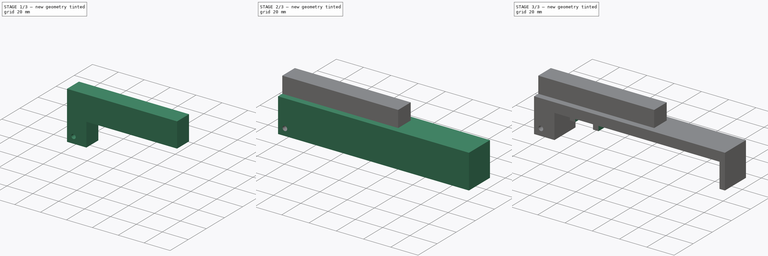
[diagram: build sequence overview — one tinted view per stage of 3, left to right]
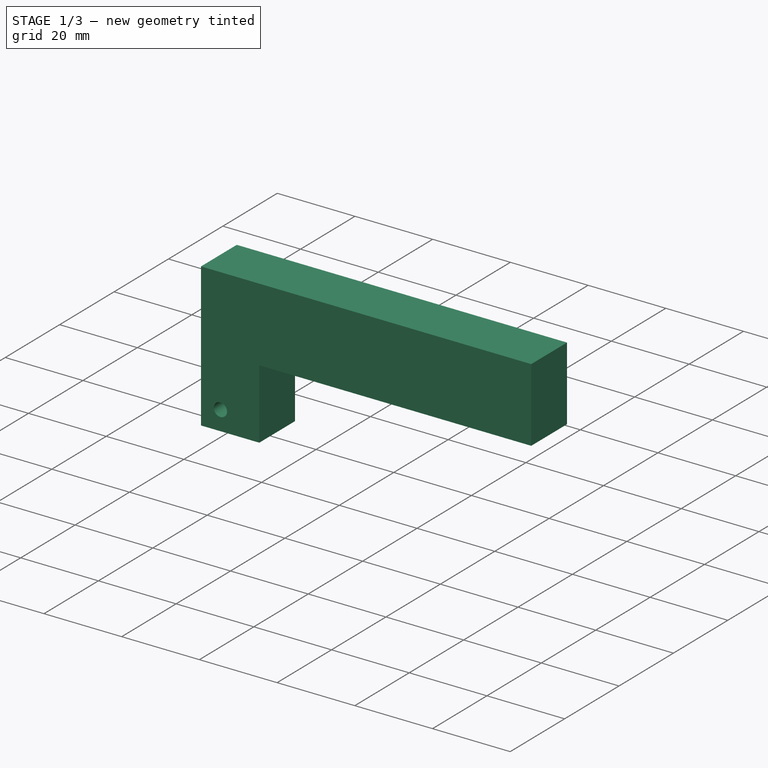
[diagram: stage 1 of 3 — iso view after this stage's code; geometry added in this stage tinted green]
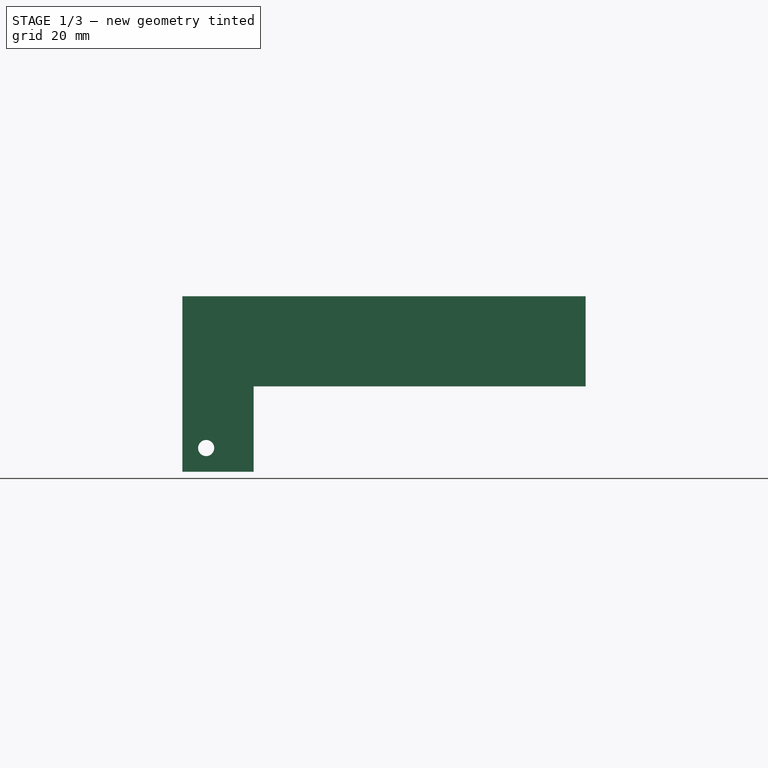
[diagram: stage 1 of 3 — front view after this stage's code; geometry added in this stage tinted green]
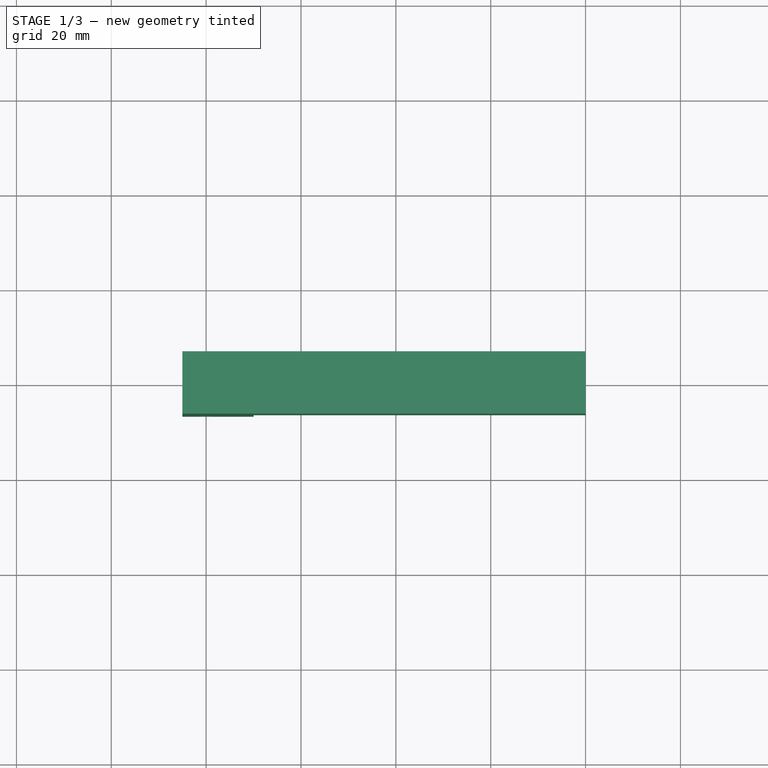
[diagram: stage 1 of 3 — top view after this stage's code; geometry added in this stage tinted green]
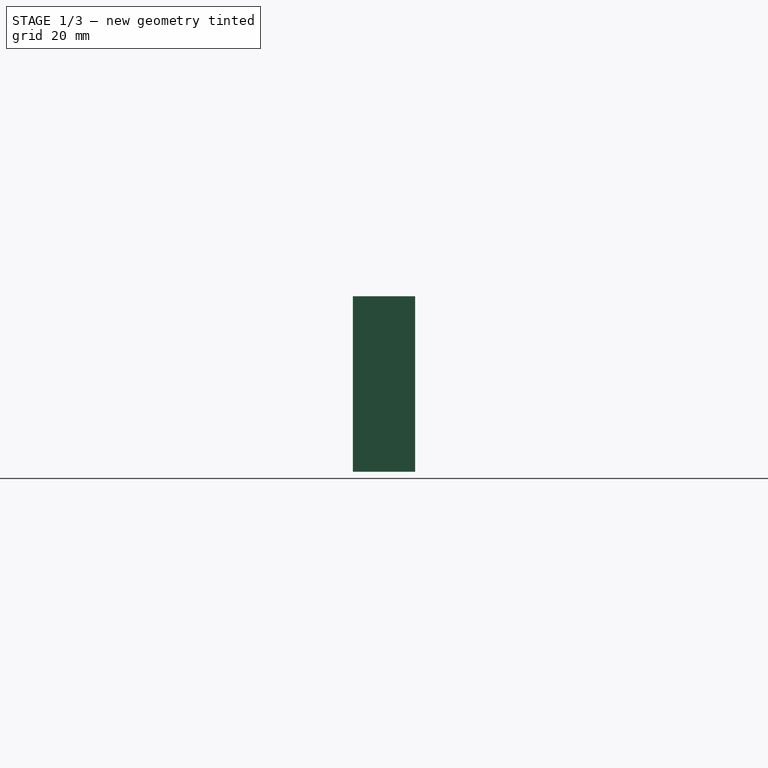
[diagram: stage 1 of 3 — right view after this stage's code; geometry added in this stage tinted green]
FCSTD DOCUMENT  (FreeCAD 1.0R39109 (Git))
Label: ProtoKeyboardPiano
License: All rights reserved
LicenseURL: https://en.wikipedia.org/wiki/All_rights_reserved
objects: Sketcher::SketchObject×7, PartDesign::Pad×3, PartDesign::Body×3, PartDesign::Pocket×2, App::Link×2, App::Part×2, Part::Feature×1
note: 33 computed .brp shape members not serialized (recipe doc carries the construction recipe); baked Part::Feature solids carry a one-line shape summary decoded from their .brp

FEATURE [PartDesign::Body] Body  label="Corps"
  AllowCompound = false
  Group = -> [Sketch,Pad,Sketch001,Pocket,Sketch002,Pad001]
  Origin = -> Origin
  Tip = -> Pad001
FEATURE [Sketcher::SketchObject] Sketch003
  ArcFitTolerance = 1e-06
  AttachmentSupport = -> [XY_Plane001]
  FullyConstrained = false
  MakeInternals = false
  MapMode = 5
  sketch-geometry (44):
    g0: LineSegment StartX=0 StartY=0 StartZ=0 EndX=140 EndY=0 EndZ=0
    g1: LineSegment StartX=140 StartY=0 StartZ=0 EndX=140 EndY=157.714 EndZ=0
    g2: LineSegment StartX=140 StartY=157.714 StartZ=0 EndX=0 EndY=157.714 EndZ=0
    g3: LineSegment StartX=0 StartY=157.714 StartZ=0 EndX=0 EndY=0 EndZ=0
    g4: LineSegment StartX=0 StartY=26.2857 StartZ=0 EndX=0 EndY=13.1429 EndZ=0
    g5: LineSegment StartX=0 StartY=13.1429 StartZ=0 EndX=85 EndY=13.1429 EndZ=0
    g6: LineSegment StartX=85 StartY=13.1429 StartZ=0 EndX=85 EndY=26.2857 EndZ=0
    g7: LineSegment StartX=85 StartY=26.2857 StartZ=0 EndX=0 EndY=26.2857 EndZ=0
    g8: LineSegment StartX=0 StartY=52.5714 StartZ=0 EndX=0 EndY=39.4286 EndZ=0
    g9: LineSegment StartX=0 StartY=39.4286 StartZ=0 EndX=85 EndY=39.4286 EndZ=0
    g10: LineSegment StartX=85 StartY=39.4286 StartZ=0 EndX=85 EndY=52.5714 EndZ=0
    g11: LineSegment StartX=85 StartY=52.5714 StartZ=0 EndX=0 EndY=52.5714 EndZ=0
    g12: LineSegment StartX=0 StartY=78.8571 StartZ=0 EndX=85 EndY=78.8571 EndZ=0
    g13: LineSegment StartX=85 StartY=78.8571 StartZ=0 EndX=85 EndY=92 EndZ=0
    g14: LineSegment StartX=85 StartY=92 StartZ=0 EndX=0 EndY=92 EndZ=0
    g15: LineSegment StartX=0 StartY=92 StartZ=0 EndX=0 EndY=78.8571 EndZ=0
    g16: LineSegment StartX=0 StartY=105.143 StartZ=0 EndX=85 EndY=105.143 EndZ=0
    g17: LineSegment StartX=85 StartY=105.143 StartZ=0 EndX=85 EndY=118.286 EndZ=0
    g18: LineSegment StartX=85 StartY=118.286 StartZ=0 EndX=0 EndY=118.286 EndZ=0
    g19: LineSegment StartX=0 StartY=118.286 StartZ=0 EndX=0 EndY=105.143 EndZ=0
    g20: LineSegment StartX=0 StartY=131.429 StartZ=0 EndX=85 EndY=131.429 EndZ=0
    g21: LineSegment StartX=85 StartY=131.429 StartZ=0 EndX=85 EndY=144.571 EndZ=0
    g22: LineSegment StartX=85 StartY=144.571 StartZ=0 EndX=0 EndY=144.571 EndZ=0
    g23: LineSegment StartX=0 StartY=144.571 StartZ=0 EndX=0 EndY=131.429 EndZ=0
    g24: LineSegment [constr] StartX=85 StartY=26.2857 StartZ=0 EndX=85 EndY=39.4286 EndZ=0
    g25: LineSegment [constr] StartX=85 StartY=92 StartZ=0 EndX=85 EndY=105.143 EndZ=0
    g26: LineSegment [constr] StartX=85 StartY=118.286 StartZ=0 EndX=85 EndY=131.429 EndZ=0
    g27: LineSegment [constr] StartX=85 StartY=144.571 StartZ=0 EndX=85 EndY=157.714 EndZ=0
    g28: LineSegment [constr] StartX=85 StartY=13.1429 StartZ=0 EndX=85 EndY=0 EndZ=0
    g29: LineSegment StartX=0 StartY=65.7143 StartZ=0 EndX=140 EndY=65.7143 EndZ=0
    g30: LineSegment [constr] StartX=85 StartY=52.5714 StartZ=0 EndX=85 EndY=65.7143 EndZ=0
    g31: LineSegment [constr] StartX=85 StartY=65.7143 StartZ=0 EndX=85 EndY=78.8571 EndZ=0
    g32: LineSegment StartX=85 StartY=21.9048 StartZ=0 EndX=140 EndY=21.9048 EndZ=0
    g33: LineSegment StartX=85 StartY=43.8095 StartZ=0 EndX=140 EndY=43.8095 EndZ=0
    g34: LineSegment StartX=85 StartY=88.7143 StartZ=0 EndX=140 EndY=88.7143 EndZ=0
    g35: LineSegment StartX=85 StartY=111.714 StartZ=0 EndX=140 EndY=111.714 EndZ=0
    g36: LineSegment StartX=85 StartY=134.714 StartZ=0 EndX=140 EndY=134.714 EndZ=0
    g37: LineSegment [constr] StartX=119.766 StartY=0 StartZ=0 EndX=119.766 EndY=21.9048 EndZ=0
    g38: LineSegment [constr] StartX=119.766 StartY=21.9048 StartZ=0 EndX=119.766 EndY=43.8095 EndZ=0
    g39: LineSegment [constr] StartX=119.766 StartY=43.8095 StartZ=0 EndX=119.766 EndY=65.7143 EndZ=0
    g40: LineSegment [constr] StartX=119.766 StartY=65.7143 StartZ=0 EndX=119.766 EndY=88.7143 EndZ=0
    g41: LineSegment [constr] StartX=119.766 StartY=88.7143 StartZ=0 EndX=119.766 EndY=111.714 EndZ=0
    g42: LineSegment [constr] StartX=119.766 StartY=111.714 StartZ=0 EndX=119.766 EndY=134.714 EndZ=0
    g43: LineSegment [constr] StartX=119.766 StartY=134.714 StartZ=0 EndX=119.766 EndY=157.714 EndZ=0
  constraints (136):
    c: Coincident(g-1,g0)
    c: Horizontal(g0)
    c: Coincident(g0,g1)
    c: Vertical(g1)
    c: Coincident(g1,g2)
    c: PointOnObject(g2,g-2)
    c: Horizontal(g2)
    c: Coincident(g2,g3)
    c: Coincident(g3,g0)
    c: Coincident(g4,g5)
    c: Coincident(g5,g6)
    c: Coincident(g6,g7)
    c: Coincident(g7,g4)
    c: Vertical(g4)
    c: Vertical(g6)
    c: Horizontal(g5)
    c: Horizontal(g7)
    c: PointOnObject(g4,g3)
    c: Coincident(g8,g9)
    c: Coincident(g9,g10)
    c: Coincident(g10,g11)
    c: Coincident(g11,g8)
    c: Vertical(g8)
    c: Vertical(g10)
    c: Horizontal(g9)
    c: Horizontal(g11)
    c: PointOnObject(g8,g3)
    c: Coincident(g12,g13)
    c: Coincident(g13,g14)
    c: Coincident(g14,g15)
    c: Coincident(g15,g12)
    c: Horizontal(g12)
    c: Horizontal(g14)
    c: Vertical(g13)
    c: Vertical(g15)
    c: PointOnObject(g12,g3)
    c: Coincident(g16,g17)
    c: Coincident(g17,g18)
    c: Coincident(g18,g19)
    c: Coincident(g19,g16)
    c: Horizontal(g16)
    c: Horizontal(g18)
    c: Vertical(g17)
    c: Vertical(g19)
    c: PointOnObject(g16,g3)
    c: Coincident(g20,g21)
    c: Coincident(g21,g22)
    c: Coincident(g22,g23)
    c: Coincident(g23,g20)
    c: Horizontal(g20)
    c: Horizontal(g22)
    c: Vertical(g21)
    c: Vertical(g23)
    c: PointOnObject(g20,g3)
    c: Equal(g6,g10)
    c: Equal(g10,g13)
    c: Equal(g13,g17)
    c: Equal(g17,g21)
    c: Coincident(g24,g6)
    c: Coincident(g24,g9)
    c: Coincident(g25,g13)
    c: Coincident(g25,g16)
    c: Vertical(g25)
    c: Coincident(g26,g17)
    c: Coincident(g26,g20)
    c: Coincident(g27,g21)
    c: PointOnObject(g27,g2)
    c: Vertical(g27)
    c: Coincident(g28,g5)
    c: PointOnObject(g28,g0)
    c: Vertical(g28)
    c: Equal(g5,g9)
    c: Equal(g9,g12)
    c: Equal(g16,g20)
    c: Equal(g28,g24)
    c: Equal(g24,g25)
    c: Equal(g25,g26)
    c: Equal(g26,g27)
    c: Distance(g28,g28) = 13.1429
    c: PointOnObject(g29,g3)
    c: PointOnObject(g29,g1)
    c: Horizontal(g29)
    c: Coincident(g30,g10)
    c: PointOnObject(g30,g29)
    c: Vertical(g30)
    c: Coincident(g31,g30)
    c: Coincident(g31,g12)
    c: Equal(g25,g31)
    c: Equal(g31,g30)
    c: DistanceX(g2,g2) = 140
    c: DistanceX(g21,g1) = 55
    c: Equal(g28,g6)
    c: PointOnObject(g32,g6)
    c: PointOnObject(g32,g1)
    c: Horizontal(g32)
    c: PointOnObject(g33,g1)
    c: Horizontal(g33)
    c: PointOnObject(g34,g13)
    c: PointOnObject(g34,g1)
    c: Horizontal(g34)
    c: PointOnObject(g35,g17)
    c: PointOnObject(g35,g1)
    c: Horizontal(g35)
    c: PointOnObject(g36,g21)
    c: PointOnObject(g36,g1)
    c: Horizontal(g36)
    c: PointOnObject(g37,g0)
    c: PointOnObject(g37,g32)
    c: Vertical(g37)
    c: Coincident(g38,g37)
    c: PointOnObject(g38,g33)
    c: Vertical(g38)
    c: Coincident(g39,g38)
    c: PointOnObject(g39,g29)
    c: Vertical(g39)
    c: Coincident(g40,g39)
    c: PointOnObject(g40,g34)
    c: Vertical(g40)
    c: Coincident(g41,g40)
    c: PointOnObject(g41,g35)
    c: Vertical(g41)
    c: Coincident(g42,g41)
    c: PointOnObject(g42,g36)
    c: Vertical(g42)
    c: Coincident(g43,g42)
    c: PointOnObject(g43,g2)
    c: Vertical(g43)
    c: Equal(g42,g43)
    c: Equal(g42,g41)
    c: Equal(g40,g41)
    c: Equal(g38,g39)
    c: PointOnObject(g33,g10)
    c: Equal(g39,g37)
    c: DistanceY(g43,g43) = 23
    c: DistanceY(g0,g1) = 157.714
    c: Distance(g6,g6) = 13.1429  'LNoire'
FEATURE [PartDesign::Body] Body001  label="Corps001"
  AllowCompound = false
  Group = -> [Sketch003]
  Origin = -> Origin001
FEATURE [App::Part] Part
  Group = -> [Body,Part__Feature,Link]
  Origin = -> Origin002
  Placement = pos=(5,11,0) rot=(0,0,1;0rad)
FEATURE [App::Link] Link001  label="Part001"
  LinkPlacement = pos=(5,33,0) rot=(0,0,1;0rad)
  LinkedObject = -> Part
  Placement = pos=(5,33,0) rot=(0,0,1;0rad)
FEATURE [Sketcher::SketchObject] Sketch004
  ArcFitTolerance = 1e-06
  AttachmentSupport = -> [XZ_Plane003]
  FullyConstrained = true
  MakeInternals = false
  MapMode = 5
  Placement = pos=(0,0,0) rot=(1,0,0;1.5708rad)
  sketch-geometry (5):
    g0: Circle CenterX=0 CenterY=0 CenterZ=0 NormalX=0 NormalY=0 NormalZ=1 AngleXU=0 Radius=1.7
    g1: LineSegment StartX=-5 StartY=-5 StartZ=0 EndX=80 EndY=-5 EndZ=0
    g2: LineSegment StartX=80 StartY=-5 StartZ=0 EndX=80 EndY=32 EndZ=0
    g3: LineSegment StartX=80 StartY=32 StartZ=0 EndX=-5 EndY=32 EndZ=0
    g4: LineSegment StartX=-5 StartY=32 StartZ=0 EndX=-5 EndY=-5 EndZ=0
  constraints (14):
    c: Coincident(g0,g-1)
    c: Diameter(g0) = 3.4
    c: Coincident(g1,g2)
    c: Coincident(g2,g3)
    c: Coincident(g3,g4)
    c: Coincident(g4,g1)
    c: Horizontal(g1)
    c: Horizontal(g3)
    c: Vertical(g2)
    c: Vertical(g4)
    c: DistanceX(g1,g0) = 5
    c: DistanceY(g1,g0) = 5
    c: DistanceX(g3,g3) = 85
    c: DistanceY(g2,g2) = 37
FEATURE [PartDesign::Pad] Pad002
  Direction = (0,-1,2e-16)
  Length = 13.1429
  Length2 = 10
  Midplane = true
  Placement = pos=(0,0,0) rot=(1,0,0;1.5708rad)
  Profile = -> Sketch004
  ReferenceAxis = -> Sketch004 [N_Axis]
  Refine = true
  Suppressed = false
  Type = 0
  expr: Length = Sketch003.Constraints.LNoire
FEATURE [Sketcher::SketchObject] Sketch005
  ArcFitTolerance = 1e-06
  AttachmentSupport = -> [XZ_Plane003]
  ExternalGeometry = -> [Pad002]
  FullyConstrained = true
  MakeInternals = false
  MapMode = 5
  Placement = pos=(0,0,0) rot=(1,0,0;1.5708rad)
  sketch-geometry (4):
    g0: LineSegment StartX=10 StartY=-5 StartZ=0 EndX=80 EndY=-5 EndZ=0
    g1: LineSegment StartX=80 StartY=-5 StartZ=0 EndX=80 EndY=13 EndZ=0
    g2: LineSegment StartX=80 StartY=13 StartZ=0 EndX=10 EndY=13 EndZ=0
    g3: LineSegment StartX=10 StartY=13 StartZ=0 EndX=10 EndY=-5 EndZ=0
  constraints (11):
    c: Coincident(g0,g1)
    c: Coincident(g1,g2)
    c: Coincident(g2,g3)
    c: Coincident(g3,g0)
    c: Horizontal(g0)
    c: Horizontal(g2)
    c: Vertical(g1)
    c: Vertical(g3)
    c: Coincident(g-3,g0)
    c: DistanceX(g-1,g0) = 10
    c: DistanceY(g1,g1) = 18
FEATURE [PartDesign::Pocket] Pocket001
  BaseFeature = -> Pad002
  Direction = (0,1,-2e-16)
  Length = 5
  Length2 = 5
  Midplane = true
  Placement = pos=(0,0,0) rot=(1,0,0;1.5708rad)
  Profile = -> Sketch005
  ReferenceAxis = -> Sketch005 [N_Axis]
  Refine = true
  Suppressed = false
  Type = 1
FEATURE [Sketcher::SketchObject] Sketch006
  ArcFitTolerance = 1e-06
  AttachmentSupport = -> [XZ_Plane003]
  ExternalGeometry = -> [Pocket001]
  FullyConstrained = false
  MakeInternals = false
  MapMode = 5
  Placement = pos=(0,0,0) rot=(1,0,0;1.5708rad)
  sketch-geometry (7):
    g0: LineSegment [constr] StartX=0 StartY=0 StartZ=0 EndX=0.450484 EndY=9.78913 EndZ=0
    g1: LineSegment [constr] StartX=0.450484 StartY=9.78913 StartZ=0 EndX=79.8314 EndY=6.13611 EndZ=0
    g2: LineSegment [constr] StartX=0 StartY=0 StartZ=0 EndX=0 EndY=9.79949 EndZ=0
    g3: LineSegment [constr] StartX=0 StartY=9.79949 StartZ=0 EndX=80 EndY=9.79949 EndZ=0
    g4: LineSegment [constr] StartX=80 StartY=9.79949 StartZ=0 EndX=79.8314 EndY=6.13611 EndZ=0
    g5: LineSegment [constr] StartX=43.6859 StartY=9.79949 StartZ=0 EndX=43.6859 EndY=7.79949 EndZ=0
    g6: LineSegment [constr] StartX=76.2813 StartY=9.79949 StartZ=0 EndX=76.2813 EndY=6.29949 EndZ=0
  constraints (21):
    c: Coincident(g0,g-1)
    c: Coincident(g1,g0)
    c: Perpendicular(g0,g1)
    c: Coincident(g2,g0)
    c: PointOnObject(g2,g-2)
    c: Coincident(g3,g2)
    c: Horizontal(g3)
    c: Coincident(g4,g3)
    c: Coincident(g4,g1)
    c: Perpendicular(g4,g1)
    c: Distance(g4,g4) = 3.66725
    c: Equal(g2,g0)
    c: PointOnObject(g3,g-3)
    c: PointOnObject(g5,g3)
    c: PointOnObject(g5,g1)
    c: Vertical(g5)
    c: PointOnObject(g6,g3)
    c: PointOnObject(g6,g1)
    c: Vertical(g6)
    c: DistanceY(g6,g6) = 3.5
    c: DistanceY(g5,g5) = 2
FEATURE [PartDesign::Body] Body002  label="Corps002"
  AllowCompound = false
  Group = -> [Sketch004,Pad002,Sketch005,Pocket001,Sketch006]
  Origin = -> Origin003
  Placement = pos=(5,19.5,0) rot=(0,0,1;0rad)
  Tip = -> Pocket001
FEATURE [App::Part] Part001  label="Part002"
  Group = -> [Body002]
  Origin = -> Origin004
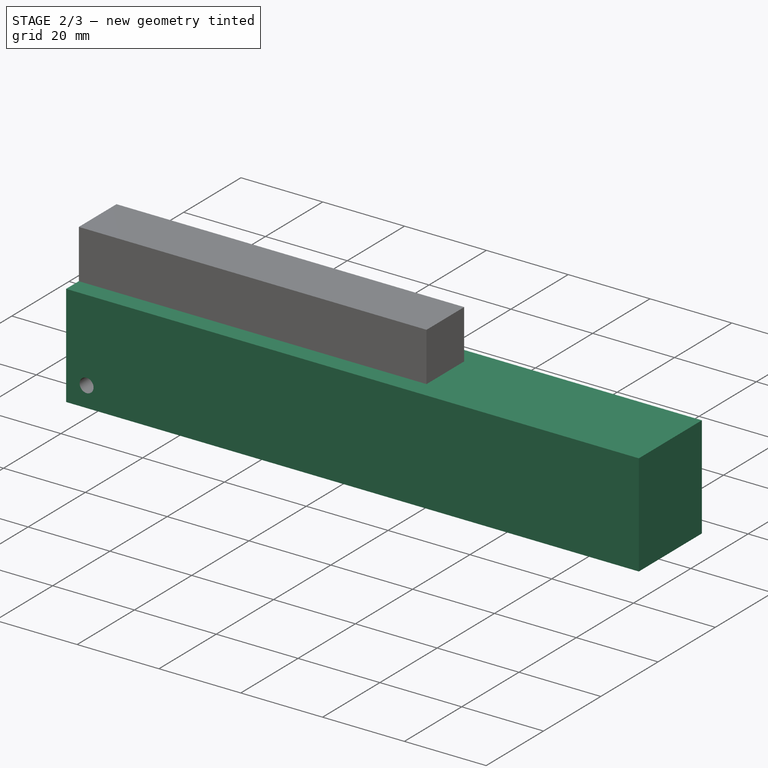
[diagram: stage 2 of 3 — iso view after this stage's code; geometry added in this stage tinted green]
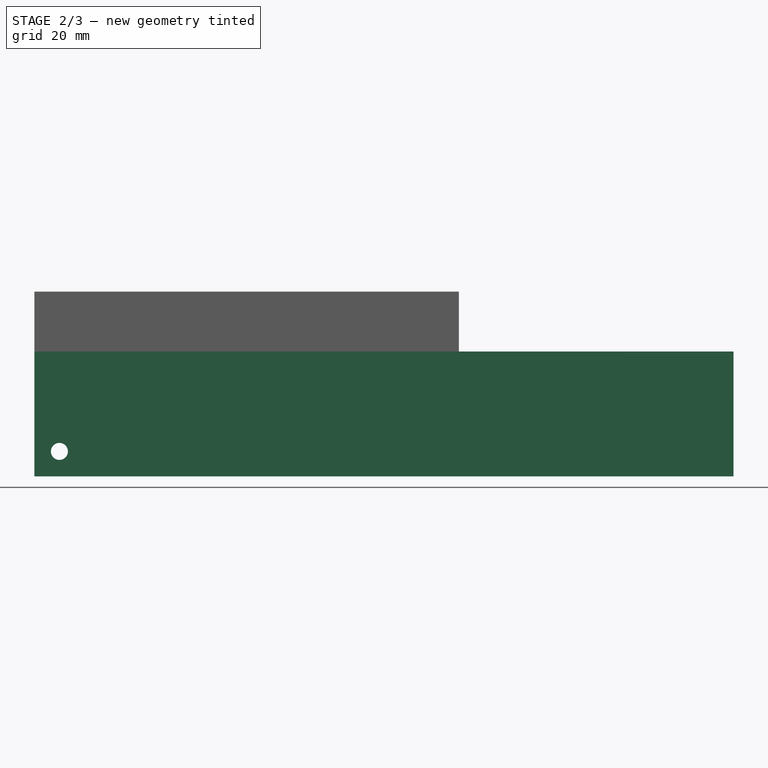
[diagram: stage 2 of 3 — front view after this stage's code; geometry added in this stage tinted green]
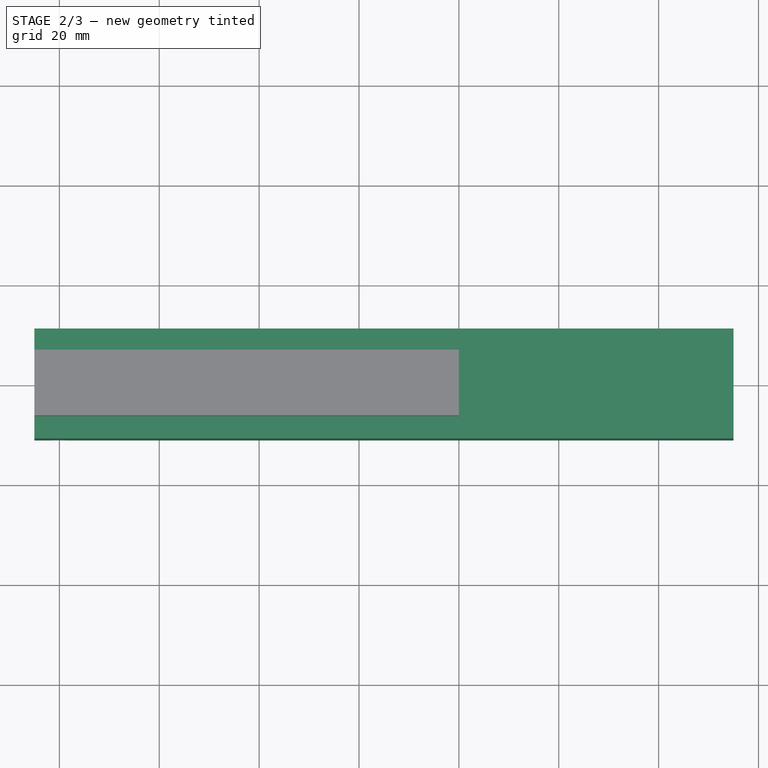
[diagram: stage 2 of 3 — top view after this stage's code; geometry added in this stage tinted green]
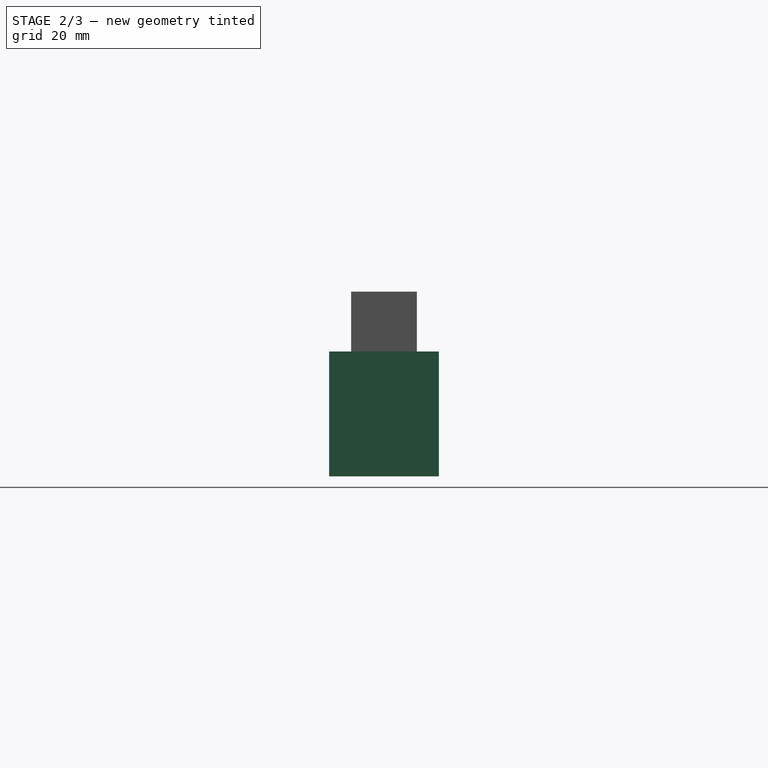
[diagram: stage 2 of 3 — right view after this stage's code; geometry added in this stage tinted green]
FEATURE [Sketcher::SketchObject] Sketch
  ArcFitTolerance = 1e-06
  AttachmentSupport = -> [XZ_Plane]
  FullyConstrained = true
  MakeInternals = false
  MapMode = 5
  Placement = pos=(0,0,0) rot=(1,0,0;1.5708rad)
  sketch-geometry (5):
    g0: Circle CenterX=0 CenterY=0 CenterZ=0 NormalX=0 NormalY=0 NormalZ=1 AngleXU=0 Radius=1.7
    g1: LineSegment StartX=-5 StartY=-5 StartZ=0 EndX=-5 EndY=20 EndZ=0
    g2: LineSegment StartX=-5 StartY=20 StartZ=0 EndX=135 EndY=20 EndZ=0
    g3: LineSegment StartX=135 StartY=20 StartZ=0 EndX=135 EndY=-5 EndZ=0
    g4: LineSegment StartX=135 StartY=-5 StartZ=0 EndX=-5 EndY=-5 EndZ=0
  constraints (14):
    c: Coincident(g0,g-1)
    c: Diameter(g0) = 3.4
    c: Vertical(g1)
    c: Coincident(g1,g2)
    c: Horizontal(g2)
    c: Coincident(g2,g3)
    c: Vertical(g3)
    c: Coincident(g3,g4)
    c: Coincident(g4,g1)
    c: Horizontal(g4)
    c: DistanceX(g2,g2) = 140
    c: DistanceX(g1,g0) = 5
    c: DistanceY(g1,g0) = 5
    c: DistanceY(g3,g3) = 25
FEATURE [PartDesign::Pad] Pad
  Direction = (0,-1,2e-16)
  Length = 22
  Length2 = 10
  Midplane = true
  Placement = pos=(0,0,0) rot=(1,0,0;1.5708rad)
  Profile = -> Sketch
  ReferenceAxis = -> Sketch [N_Axis]
  Refine = true
  Suppressed = false
  Type = 0
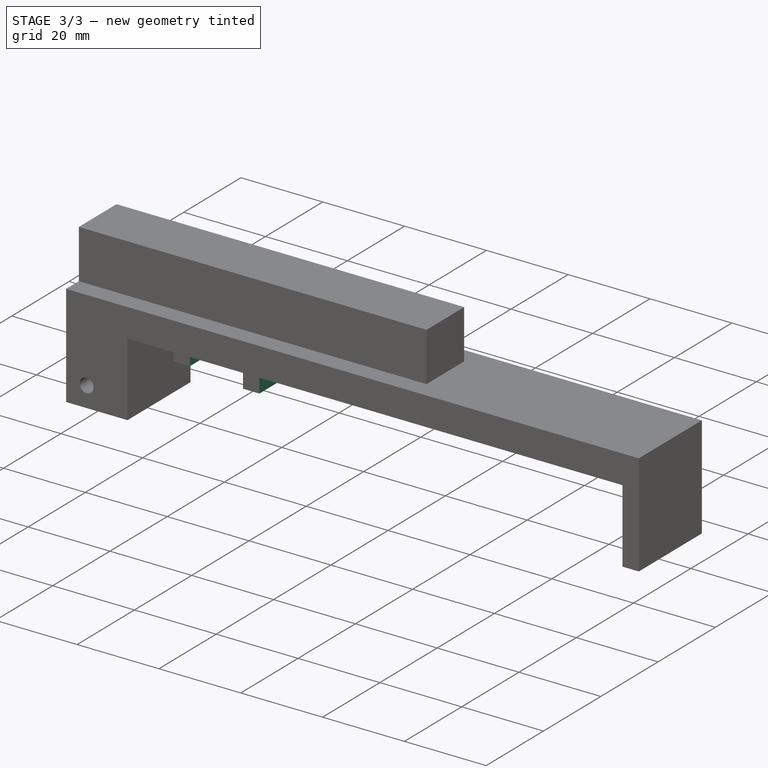
[diagram: stage 3 of 3 — iso view after this stage's code; geometry added in this stage tinted green]
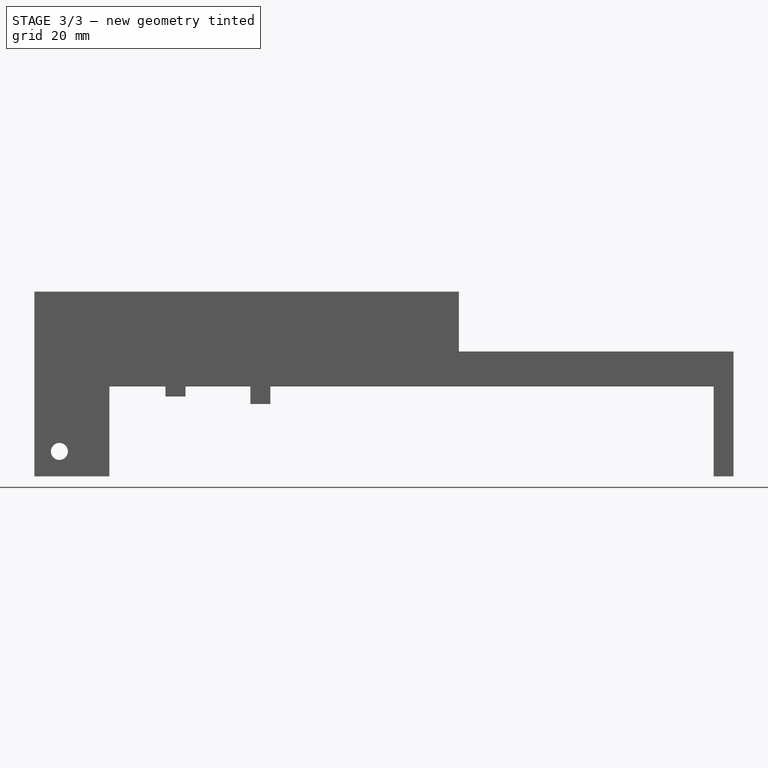
[diagram: stage 3 of 3 — front view after this stage's code; geometry added in this stage tinted green]
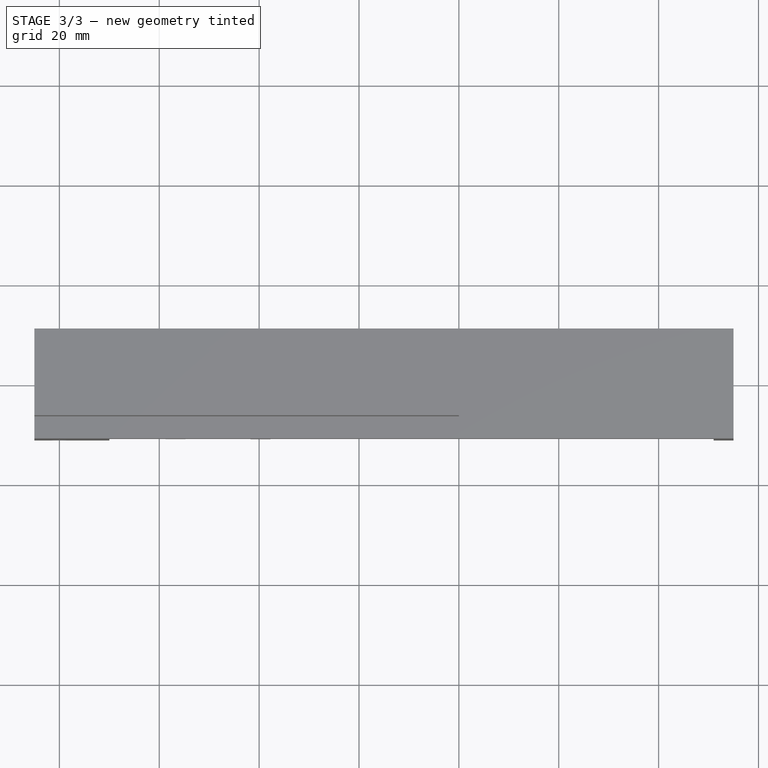
[diagram: stage 3 of 3 — top view after this stage's code; geometry added in this stage tinted green]
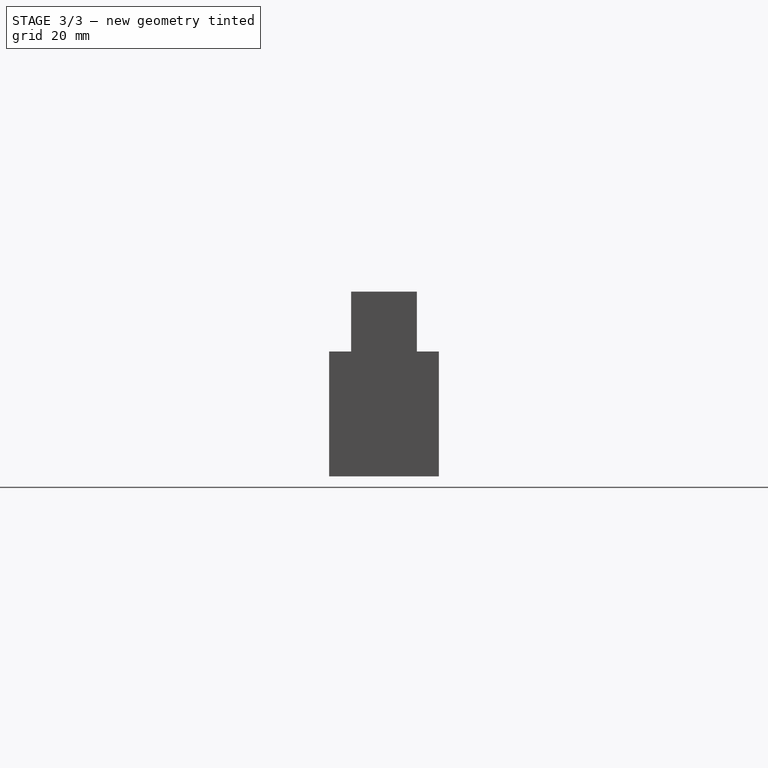
[diagram: stage 3 of 3 — right view after this stage's code; geometry added in this stage tinted green]
FEATURE [Sketcher::SketchObject] Sketch001
  ArcFitTolerance = 1e-06
  AttachmentSupport = -> [XZ_Plane]
  ExternalGeometry = -> [Pad]
  FullyConstrained = true
  MakeInternals = false
  MapMode = 5
  Placement = pos=(0,0,0) rot=(1,0,0;1.5708rad)
  sketch-geometry (4):
    g0: LineSegment StartX=10 StartY=-5 StartZ=0 EndX=131 EndY=-5 EndZ=0
    g1: LineSegment StartX=131 StartY=-5 StartZ=0 EndX=131 EndY=13 EndZ=0
    g2: LineSegment StartX=131 StartY=13 StartZ=0 EndX=10 EndY=13 EndZ=0
    g3: LineSegment StartX=10 StartY=13 StartZ=0 EndX=10 EndY=-5 EndZ=0
  constraints (12):
    c: Coincident(g0,g1)
    c: Coincident(g1,g2)
    c: Coincident(g2,g3)
    c: Coincident(g3,g0)
    c: Horizontal(g0)
    c: Horizontal(g2)
    c: Vertical(g1)
    c: Vertical(g3)
    c: PointOnObject(g0,g-3)
    c: Distance(g-3,g0) = 4
    c: DistanceY(g1,g1) = 18
    c: DistanceX(g-1,g0) = 10
FEATURE [PartDesign::Pocket] Pocket
  BaseFeature = -> Pad
  Direction = (0,1,-2e-16)
  Length = 5
  Length2 = 5
  Midplane = true
  Placement = pos=(0,0,0) rot=(1,0,0;1.5708rad)
  Profile = -> Sketch001
  ReferenceAxis = -> Sketch001 [N_Axis]
  Refine = true
  Suppressed = false
  Type = 1
FEATURE [Part::Feature] Part__Feature  label="cherry mx"
  Placement = pos=(23,-7e-16,0.5) rot=(-0.57735,0.57735,0.57735;4.18879rad)
  shape: bbox 16.33 x 15.64 x 17.85 mm, 92 faces (baked)
FEATURE [App::Link] Link  label="cherry mx001"
  LinkPlacement = pos=(40,5.36441e-07,0.499996) rot=(-0.57735,0.57735,0.57735;4.18879rad)
  LinkedObject = -> Part__Feature
  Placement = pos=(40,5.36441e-07,0.499996) rot=(-0.57735,0.57735,0.57735;4.18879rad)
FEATURE [Sketcher::SketchObject] Sketch002
  ArcFitTolerance = 1e-06
  AttachmentSupport = -> [XZ_Plane]
  ExternalGeometry = -> [Pocket]
  FullyConstrained = false
  MakeInternals = false
  MapMode = 5
  Placement = pos=(0,0,0) rot=(1,0,0;1.5708rad)
  sketch-geometry (23):
    g0: LineSegment [constr] StartX=0 StartY=0 StartZ=0 EndX=0 EndY=13 EndZ=0
    g1: LineSegment [constr] StartX=0 StartY=0 StartZ=0 EndX=1.14262 EndY=12.9497 EndZ=0
    g2: LineSegment [constr] StartX=1.14262 StartY=12.9497 StartZ=0 EndX=131 EndY=1.49168 EndZ=0
    g3: LineSegment [constr] StartX=23.2391 StartY=13 StartZ=0 EndX=23.2391 EndY=11 EndZ=0
    g4: LineSegment [constr] StartX=40.2391 StartY=13 StartZ=0 EndX=40.2391 EndY=9.5 EndZ=0
    g5: LineSegment StartX=21.2391 StartY=11 StartZ=0 EndX=25.2391 EndY=11 EndZ=0
    g6: LineSegment StartX=25.2391 StartY=11 StartZ=0 EndX=25.2391 EndY=13 EndZ=0
    g7: LineSegment StartX=25.2391 StartY=13 StartZ=0 EndX=21.2391 EndY=13 EndZ=0
    g8: LineSegment StartX=21.2391 StartY=13 StartZ=0 EndX=21.2391 EndY=11 EndZ=0
    g9: GeomPoint [constr] X=23.2391 Y=12 Z=0
    g10: LineSegment StartX=38.2391 StartY=9.5 StartZ=0 EndX=42.2391 EndY=9.5 EndZ=0
    g11: LineSegment StartX=42.2391 StartY=9.5 StartZ=0 EndX=42.2391 EndY=13 EndZ=0
    g12: LineSegment StartX=42.2391 StartY=13 StartZ=0 EndX=38.2391 EndY=13 EndZ=0
    g13: LineSegment StartX=38.2391 StartY=13 StartZ=0 EndX=38.2391 EndY=9.5 EndZ=0
    g14: GeomPoint [constr] X=40.2391 Y=11.25 Z=0
    g15: LineSegment [constr] StartX=0 StartY=13 StartZ=0 EndX=131 EndY=13 EndZ=0
    g16: LineSegment [constr] StartX=131 StartY=13 StartZ=0 EndX=131 EndY=1.49168 EndZ=0
    g17: LineSegment [constr] StartX=80 StartY=13 StartZ=0 EndX=80 EndY=-14.9258 EndZ=0
    g18: LineSegment [constr] StartX=0 StartY=0 StartZ=0 EndX=1.94118 EndY=16.5 EndZ=0
    g19: LineSegment [constr] StartX=1.94118 StartY=16.5 StartZ=0 EndX=80 EndY=7.31663 EndZ=0
    g20: LineSegment [constr] StartX=0 StartY=11.9944 StartZ=0 EndX=80 EndY=11.9944 EndZ=0
    g21: LineSegment [constr] StartX=57.2391 StartY=11.9944 StartZ=0 EndX=57.2391 EndY=9.99439 EndZ=0
    g22: LineSegment [constr] StartX=74.2391 StartY=11.9944 StartZ=0 EndX=74.2391 EndY=7.99439 EndZ=0
  constraints (68):
    c: Coincident(g0,g-1)
    c: PointOnObject(g0,g-2)
    c: Coincident(g0,g1)
    c: Coincident(g1,g2)
    c: Perpendicular(g2,g1,g1) = 1.5708
    c: Equal(g0,g1)
    c: PointOnObject(g3,g2)
    c: Vertical(g3)
    c: PointOnObject(g4,g2)
    c: Vertical(g4)
    c: Distance(g3,g3) = 2
    c: Distance(g4,g4) = 3.5
    c: DistanceX(g0,g3) = 23.2391
    c: DistanceX(g0,g4) = 40.2391
    c: Coincident(g5,g6)
    c: Coincident(g6,g7)
    c: Coincident(g7,g8)
    c: Coincident(g8,g5)
    c: Horizontal(g5)
    c: Horizontal(g7)
    c: Vertical(g6)
    c: Vertical(g8)
    c: Symmetric(g7,g5,g9)
    c: Symmetric(g3,g3,g9)
    c: Coincident(g10,g11)
    c: Coincident(g11,g12)
    c: Coincident(g12,g13)
    c: Coincident(g13,g10)
    c: Horizontal(g10)
    c: Horizontal(g12)
    c: Vertical(g11)
    c: Vertical(g13)
    c: Symmetric(g12,g10,g14)
    c: Symmetric(g4,g4,g14)
    c: Equal(g12,g7)
    c: Distance(g7,g7) = 4
    c: Coincident(g15,g0)
    c: Horizontal(g15)
    c: PointOnObject(g6,g15)
    c: PointOnObject(g3,g5)
    c: PointOnObject(g11,g15)
    c: PointOnObject(g4,g10)
    c: Coincident(g16,g15)
    c: Coincident(g16,g2)
    c: Perpendicular(g15,g16)
    c: Vertical(g17)
    c: DistanceX(g17,g-4) = 55
    c: Coincident(g15,g-3)
    c: PointOnObject(g17,g15)
    c: Coincident(g18,g0)
    c: Coincident(g19,g18)
    c: Perpendicular(g19,g18)
    c: PointOnObject(g19,g17)
    c: PointOnObject(g20,g-2)
    c: Horizontal(g20)
    c: PointOnObject(g20,g17)
    c: PointOnObject(g21,g20)
    c: PointOnObject(g21,g19)
    c: Vertical(g21)
    c: PointOnObject(g22,g20)
    c: PointOnObject(g22,g19)
    c: Vertical(g22)
    c: Distance(g21,g21) = 2
    c: Distance(g22,g22) = 4
    c: DistanceX(g3,g4) = 17
    c: DistanceX(g4,g21) = 17
    c: DistanceX(g21,g22) = 17
    c: DistanceY(g16,g16) = 11.5083
FEATURE [PartDesign::Pad] Pad001
  BaseFeature = -> Pocket
  Direction = (0,-1,2e-16)
  Length = 22
  Length2 = 10
  Midplane = true
  Placement = pos=(0,0,0) rot=(1,0,0;1.5708rad)
  Profile = -> Sketch002
  ReferenceAxis = -> Sketch002 [N_Axis]
  Refine = true
  Suppressed = false
  Type = 0
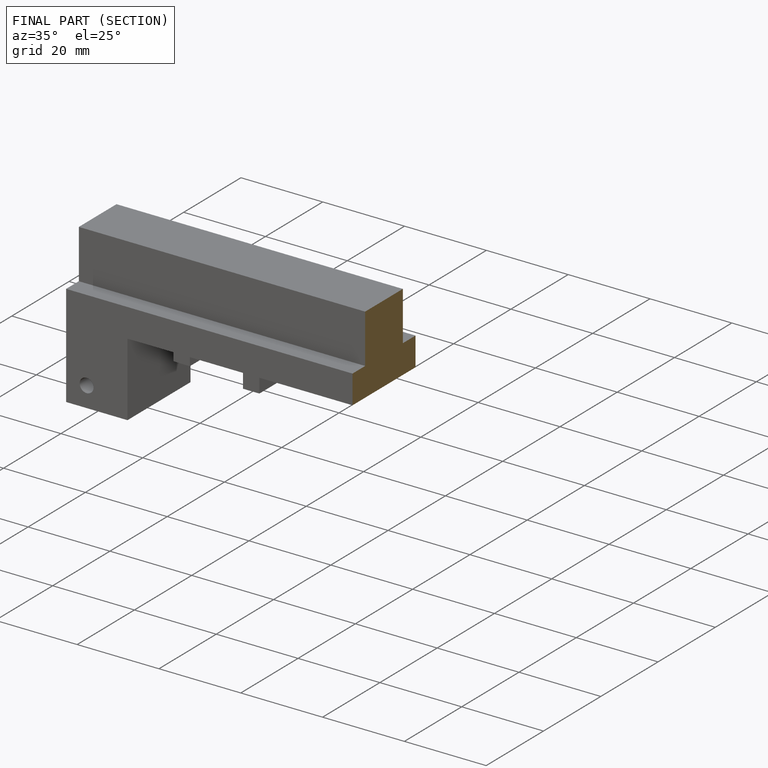
[diagram: finished part — half-section view (interior)]
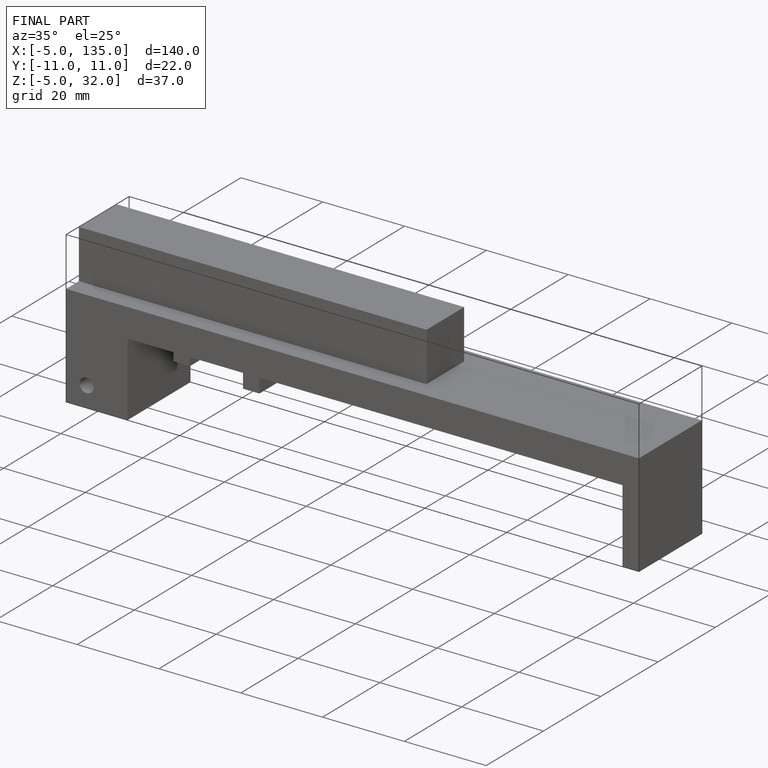
[diagram: finished part — iso view with bounding-box wireframe]
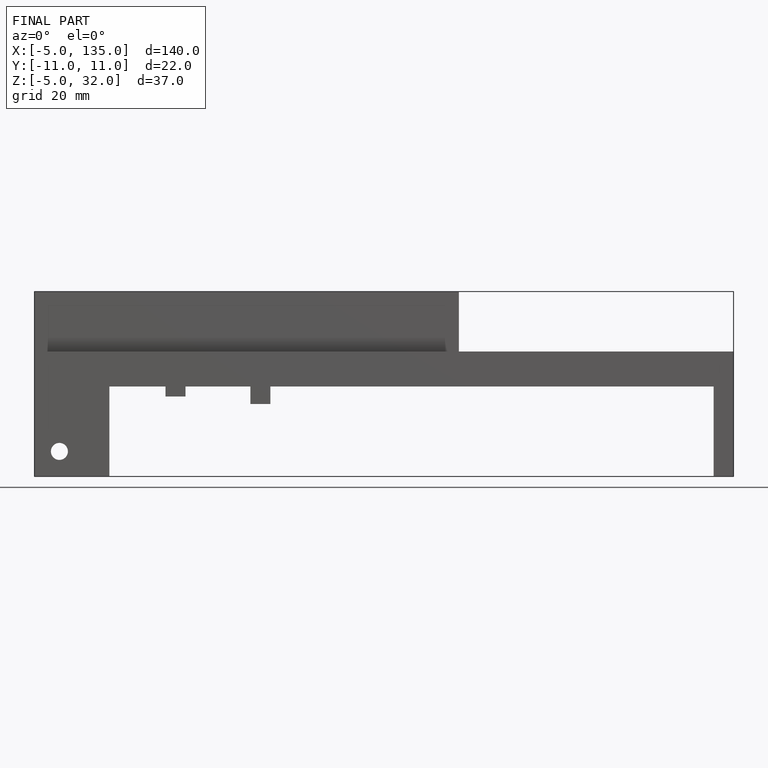
[diagram: finished part — front view with bounding-box wireframe]
